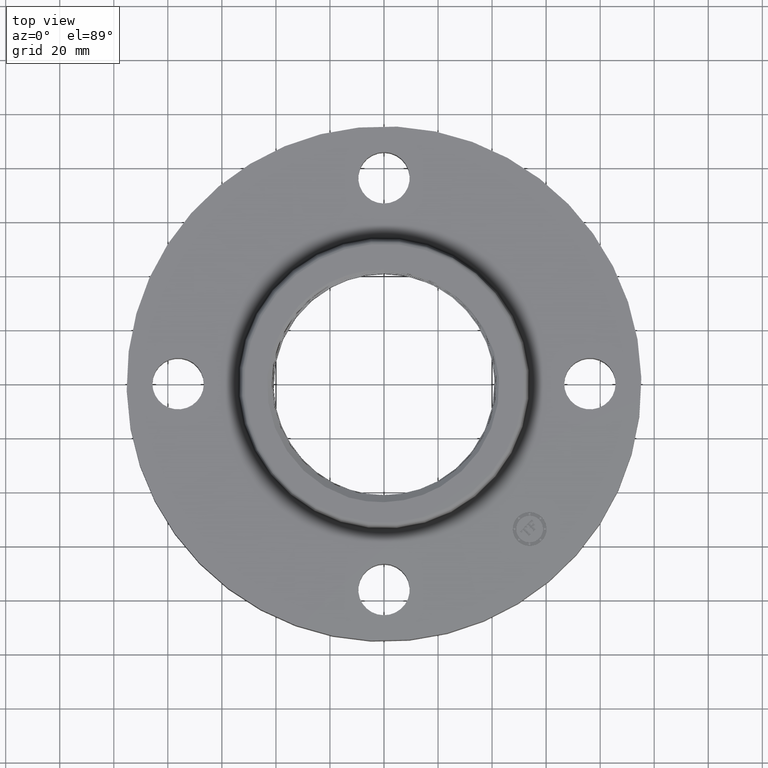
[diagram: clean part render]
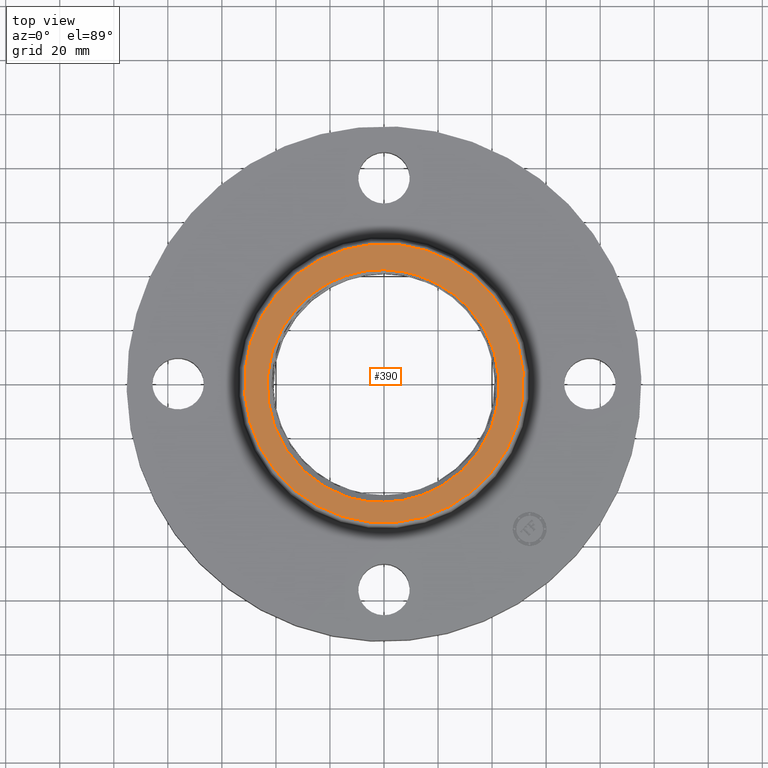
[diagram: same view with one face highlighted and labeled with its STEP entity id]
A machine part, top view. The second image highlights one B-rep face of the part: STEP entity #390.
In plain terms, the highlighted planar face has unit normal (0, 0, -1).
Its self-contained STEP definition (entity closure, byte-faithful):
#255=AXIS2_PLACEMENT_3D('Plane Axis2P3D',#252,#253,#254) ;
#259=AXIS2_PLACEMENT_3D('Circle Axis2P3D',#257,#258,$) ;
#268=AXIS2_PLACEMENT_3D('Circle Axis2P3D',#266,#267,$) ;
#277=AXIS2_PLACEMENT_3D('Circle Axis2P3D',#275,#276,$) ;
#252=CARTESIAN_POINT('Axis2P3D Location',(0.,2.03233554677,1.12)) ;
#257=CARTESIAN_POINT('Axis2P3D Location',(0.,0.,1.12)) ;
#261=CARTESIAN_POINT('Vertex',(0.974353564133,1.78354223575,1.12)) ;
#263=CARTESIAN_POINT('Vertex',(-0.974353564133,-1.78354223575,1.12)) ;
#266=CARTESIAN_POINT('Axis2P3D Location',(0.,0.,1.12)) ;
#275=CARTESIAN_POINT('Axis2P3D Location',(-2.79741234551E-016,0.,1.12)) ;
#279=CARTESIAN_POINT('Vertex',(0.656779802852,1.5063872358,1.12)) ;
#281=CARTESIAN_POINT('Vertex',(0.781079424888,1.44584824468,1.12000000984)) ;
#285=CARTESIAN_POINT('Control Point',(0.822361207076,-1.50532321118,1.12)) ;
#286=CARTESIAN_POINT('Control Point',(0.940295853817,-1.43786878793,1.12)) ;
#287=CARTESIAN_POINT('Control Point',(1.05143596466,-1.35880134218,1.12)) ;
#288=CARTESIAN_POINT('Control Point',(1.15424230137,-1.269020181,1.12)) ;
#289=CARTESIAN_POINT('Control Point',(1.34048705256,-1.07044636672,1.12)) ;
#290=CARTESIAN_POINT('Control Point',(1.48371084444,-0.839552699204,1.12)) ;
#291=CARTESIAN_POINT('Control Point',(1.54350425627,-0.717435721026,1.12)) ;
#292=CARTESIAN_POINT('Control Point',(1.60837542243,-0.542628575732,1.12)) ;
#293=CARTESIAN_POINT('Control Point',(1.64857551208,-0.36162233691,1.12)) ;
#294=CARTESIAN_POINT('Control Point',(1.65768052633,-0.311890330936,1.12)) ;
#295=CARTESIAN_POINT('Control Point',(1.68420343326,-0.12846058629,1.12)) ;
#296=CARTESIAN_POINT('Control Point',(1.68539405127,0.057371739935,1.12)) ;
#297=CARTESIAN_POINT('Control Point',(1.67269161412,0.191992626168,1.12)) ;
#298=CARTESIAN_POINT('Control Point',(1.62053807812,0.456652236393,1.12)) ;
#299=CARTESIAN_POINT('Control Point',(1.51710793887,0.705017471362,1.12)) ;
#300=CARTESIAN_POINT('Control Point',(1.4530802649,0.823493331259,1.12)) ;
#301=CARTESIAN_POINT('Control Point',(1.30308198615,1.0444930263,1.12)) ;
#302=CARTESIAN_POINT('Control Point',(1.11266255365,1.23094445086,1.12)) ;
#303=CARTESIAN_POINT('Control Point',(1.00909703332,1.31380732064,1.12)) ;
#304=CARTESIAN_POINT('Control Point',(0.898051720627,1.38570591653,1.12)) ;
#305=CARTESIAN_POINT('Control Point',(0.781079563227,1.44584847285,1.12)) ;
#306=CARTESIAN_POINT('Vertex',(0.822361207076,-1.50532321118,1.12)) ;
#310=CARTESIAN_POINT('Control Point',(-6.49634218405E-007,-1.73207587175,1.12)) ;
#311=CARTESIAN_POINT('Control Point',(0.138402961851,-1.72939594856,1.12)) ;
#312=CARTESIAN_POINT('Control Point',(0.276405546408,-1.71288936726,1.12)) ;
#313=CARTESIAN_POINT('Control Point',(0.412166355685,-1.68260727841,1.12)) ;
#314=CARTESIAN_POINT('Control Point',(0.57655710504,-1.628140557,1.12)) ;
#315=CARTESIAN_POINT('Control Point',(0.731969855804,-1.55407310023,1.12)) ;
#316=CARTESIAN_POINT('Control Point',(0.762515061526,-1.53856960039,1.12)) ;
#317=CARTESIAN_POINT('Control Point',(0.792653698579,-1.52231484937,1.12)) ;
#318=CARTESIAN_POINT('Control Point',(0.822361207076,-1.50532321118,1.12)) ;
#319=CARTESIAN_POINT('Vertex',(-6.49634218685E-007,-1.73207587175,1.12)) ;
#323=CARTESIAN_POINT('Control Point',(-0.512277998097,-1.66507723787,1.12)) ;
#324=CARTESIAN_POINT('Control Point',(-0.412479035699,-1.69368666435,1.12)) ;
#325=CARTESIAN_POINT('Control Point',(-0.310595353981,-1.71484585733,1.12)) ;
#326=CARTESIAN_POINT('Control Point',(-0.207366451767,-1.72834396496,1.12)) ;
#327=CARTESIAN_POINT('Control Point',(-0.103571269545,-1.73408132006,1.12)) ;
#328=CARTESIAN_POINT('Control Point',(-6.49634221168E-007,-1.73207587175,1.12)) ;
#329=CARTESIAN_POINT('Vertex',(-0.512277998097,-1.66507723787,1.12)) ;
#333=CARTESIAN_POINT('Control Point',(-0.512277998097,-1.66507723787,1.12)) ;
#334=CARTESIAN_POINT('Control Point',(-0.642455342726,-1.62253584563,1.12)) ;
#335=CARTESIAN_POINT('Control Point',(-0.768304119874,-1.56724656973,1.12)) ;
#336=CARTESIAN_POINT('Control Point',(-0.888157463692,-1.49978048416,1.12)) ;
#337=CARTESIAN_POINT('Control Point',(-1.11285881804,-1.34225873218,1.12)) ;
#338=CARTESIAN_POINT('Control Point',(-1.30212156779,-1.1442770998,1.12)) ;
#339=CARTESIAN_POINT('Control Point',(-1.38660711555,-1.03628596181,1.12)) ;
#340=CARTESIAN_POINT('Control Point',(-1.53296602881,-0.80530830711,1.12)) ;
#341=CARTESIAN_POINT('Control Point',(-1.6310932817,-0.550483097765,1.12)) ;
#342=CARTESIAN_POINT('Control Point',(-1.66730173863,-0.418727213632,1.12)) ;
#343=CARTESIAN_POINT('Control Point',(-1.70447449484,-0.200398146593,1.12)) ;
#344=CARTESIAN_POINT('Control Point',(-1.70616449712,0.0202140875693,1.12)) ;
#345=CARTESIAN_POINT('Control Point',(-1.70154082059,0.104922145369,1.12)) ;
#346=CARTESIAN_POINT('Control Point',(-1.68377452885,0.256395795885,1.12)) ;
#347=CARTESIAN_POINT('Control Point',(-1.64927016491,0.404704386121,1.12)) ;
#348=CARTESIAN_POINT('Control Point',(-1.6306736781,0.469758276116,1.12)) ;
#349=CARTESIAN_POINT('Control Point',(-1.56529183242,0.661715082725,1.12)) ;
#350=CARTESIAN_POINT('Control Point',(-1.47187895446,0.842238456664,1.12)) ;
#351=CARTESIAN_POINT('Control Point',(-1.39781869964,0.955853224271,1.12)) ;
#352=CARTESIAN_POINT('Control Point',(-1.24706982691,1.14307467836,1.12)) ;
#353=CARTESIAN_POINT('Control Point',(-1.06629921135,1.30023053571,1.12)) ;
#354=CARTESIAN_POINT('Control Point',(-0.98210784869,1.3626066619,1.12)) ;
#355=CARTESIAN_POINT('Control Point',(-0.893460140134,1.41813498705,1.12)) ;
#356=CARTESIAN_POINT('Control Point',(-0.801111687203,1.4664289023,1.12)) ;
#357=CARTESIAN_POINT('Vertex',(-0.801111687203,1.4664289023,1.12)) ;
#361=CARTESIAN_POINT('Control Point',(-0.801111687203,1.4664289023,1.12)) ;
#362=CARTESIAN_POINT('Control Point',(-0.682769194324,1.52831648289,1.12)) ;
#363=CARTESIAN_POINT('Control Point',(-0.558349597275,1.57832385976,1.12)) ;
#364=CARTESIAN_POINT('Control Point',(-0.429433113029,1.61564014809,1.12)) ;
#365=CARTESIAN_POINT('Control Point',(-0.26504907487,1.64577298862,1.12)) ;
#366=CARTESIAN_POINT('Control Point',(-0.0991605354706,1.65515651828,1.12)) ;
#367=CARTESIAN_POINT('Control Point',(-0.0661019507899,1.65620025744,1.12)) ;
#368=CARTESIAN_POINT('Control Point',(-0.0330385572313,1.65641897031,1.12)) ;
#369=CARTESIAN_POINT('Control Point',(2.16677185482E-006,1.65581341493,1.12)) ;
#370=CARTESIAN_POINT('Vertex',(2.16677185492E-006,1.65581341493,1.12)) ;
#374=CARTESIAN_POINT('Control Point',(2.16677185422E-006,1.65581341493,1.12)) ;
#375=CARTESIAN_POINT('Control Point',(0.135929906884,1.65332219328,1.12)) ;
#376=CARTESIAN_POINT('Control Point',(0.271474063896,1.63688053554,1.12)) ;
#377=CARTESIAN_POINT('Control Point',(0.404701967896,1.60654234216,1.12)) ;
#378=CARTESIAN_POINT('Control Point',(0.533710739168,1.56277182178,1.12)) ;
#379=CARTESIAN_POINT('Control Point',(0.656779796345,1.50638724049,1.12)) ;
#253=DIRECTION('Axis2P3D Direction',(0.,0.,-0.0393700787402)) ;
#254=DIRECTION('Axis2P3D XDirection',(0.0393700787402,0.,0.)) ;
#258=DIRECTION('Axis2P3D Direction',(0.,0.,-0.0393700787402)) ;
#267=DIRECTION('Axis2P3D Direction',(0.,0.,-0.0393700787402)) ;
#276=DIRECTION('Axis2P3D Direction',(0.,0.,-0.0393700787402)) ;
#272=ORIENTED_EDGE('',*,*,#265,.F.) ;
#273=ORIENTED_EDGE('',*,*,#270,.F.) ;
#382=ORIENTED_EDGE('',*,*,#283,.T.) ;
#383=ORIENTED_EDGE('',*,*,#308,.F.) ;
#384=ORIENTED_EDGE('',*,*,#321,.F.) ;
#385=ORIENTED_EDGE('',*,*,#331,.F.) ;
#386=ORIENTED_EDGE('',*,*,#359,.T.) ;
#387=ORIENTED_EDGE('',*,*,#372,.T.) ;
#388=ORIENTED_EDGE('',*,*,#380,.T.) ;
#389=FACE_BOUND('',#381,.T.) ;
#390=ADVANCED_FACE('PartBody',(#274,#389),#256,.F.) ;
#284=B_SPLINE_CURVE_WITH_KNOTS('',5,(#285,#286,#287,#288,#289,#290,#291,#292,#293,#294,#295,#296,#297,#298,#299,#300,#301,#302,#303,#304,#305),.UNSPECIFIED.,.F.,.U.,(6,3,3,3,3,3,6),(0.,24.2477400632,48.498671464,57.5926229597,81.8543828352,106.145110125,130.173596057),.UNSPECIFIED.) ;
#309=B_SPLINE_CURVE_WITH_KNOTS('',5,(#310,#311,#312,#313,#314,#315,#316,#317,#318),.UNSPECIFIED.,.F.,.U.,(6,3,6),(0.,24.5859042887,30.6938629208),.UNSPECIFIED.) ;
#322=B_SPLINE_CURVE_WITH_KNOTS('',5,(#323,#324,#325,#326,#327,#328),.UNSPECIFIED.,.F.,.U.,(6,6),(0.,18.3982001689),.UNSPECIFIED.) ;
#332=B_SPLINE_CURVE_WITH_KNOTS('',5,(#333,#334,#335,#336,#337,#338,#339,#340,#341,#342,#343,#344,#345,#346,#347,#348,#349,#350,#351,#352,#353,#354,#355,#356),.UNSPECIFIED.,.F.,.U.,(6,3,3,3,3,3,3,6),(0.,24.2697660847,48.5569734677,72.8270308112,87.9824939388,100.101278902,124.338664201,143.171875917),.UNSPECIFIED.) ;
#360=B_SPLINE_CURVE_WITH_KNOTS('',5,(#361,#362,#363,#364,#365,#366,#367,#368,#369),.UNSPECIFIED.,.F.,.U.,(6,3,6),(0.,24.1343428343,30.1335490119),.UNSPECIFIED.) ;
#373=B_SPLINE_CURVE_WITH_KNOTS('',5,(#374,#375,#376,#377,#378,#379),.UNSPECIFIED.,.F.,.U.,(6,6),(0.,24.6804076716),.UNSPECIFIED.) ;
#260=CIRCLE('generated circle',#259,2.03233554677) ;
#269=CIRCLE('generated circle',#268,2.03233554677) ;
#278=CIRCLE('generated circle',#277,1.64333873977) ;
#265=EDGE_CURVE('',#262,#264,#260,.T.) ;
#270=EDGE_CURVE('',#264,#262,#269,.T.) ;
#283=EDGE_CURVE('',#280,#282,#278,.T.) ;
#308=EDGE_CURVE('',#307,#282,#284,.T.) ;
#321=EDGE_CURVE('',#320,#307,#309,.T.) ;
#331=EDGE_CURVE('',#330,#320,#322,.T.) ;
#359=EDGE_CURVE('',#330,#358,#332,.T.) ;
#372=EDGE_CURVE('',#358,#371,#360,.T.) ;
#380=EDGE_CURVE('',#371,#280,#373,.T.) ;
#271=EDGE_LOOP('',(#272,#273)) ;
#381=EDGE_LOOP('',(#382,#383,#384,#385,#386,#387,#388)) ;
#274=FACE_OUTER_BOUND('',#271,.T.) ;
#256=PLANE('',#255) ;
#262=VERTEX_POINT('',#261) ;
#264=VERTEX_POINT('',#263) ;
#280=VERTEX_POINT('',#279) ;
#282=VERTEX_POINT('',#281) ;
#307=VERTEX_POINT('',#306) ;
#320=VERTEX_POINT('',#319) ;
#330=VERTEX_POINT('',#329) ;
#358=VERTEX_POINT('',#357) ;
#371=VERTEX_POINT('',#370) ;